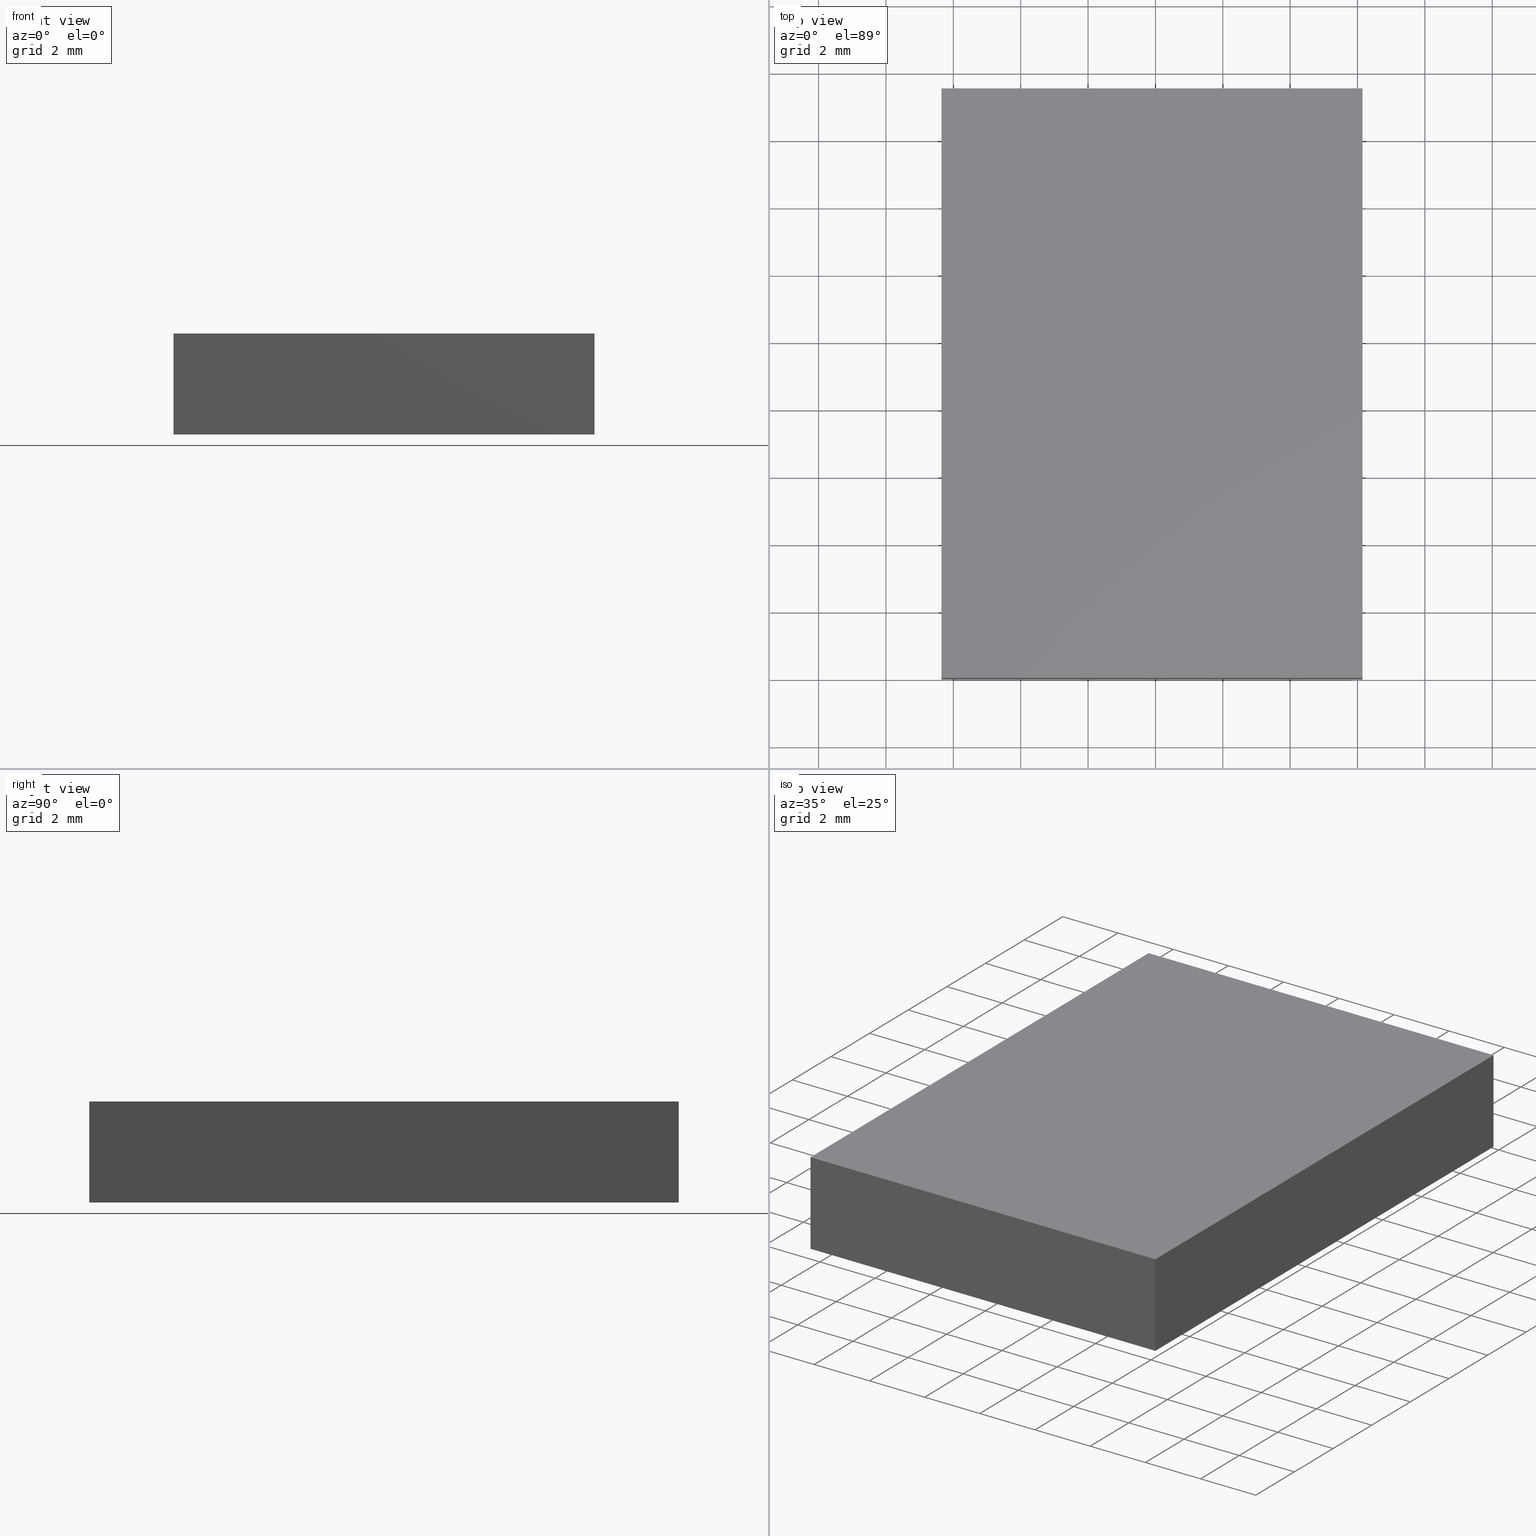
[diagram: canonical four-view strip — front | top / right | iso, engineering-drawing reading convention]
A machine part, canonical four-view strip (front | top / right | iso — engineering-drawing reading convention). The complete STEP part file that produces these views, byte-faithful:
ISO-10303-21;
HEADER;
FILE_DESCRIPTION (( 'STEP AP203' ),
    '1' );
FILE_NAME ('340507.STEP',
    '2019-07-30T06:59:13',
    ( '' ),
    ( '' ),
    'SwSTEP 2.0',
    'SolidWorks 2016',
    '' );
FILE_SCHEMA (( 'CONFIG_CONTROL_DESIGN' ));
ENDSEC;

DATA;
#1 = PLANE ( 'NONE',  #244 ) ;
#2 = PERSON_AND_ORGANIZATION ( #238, #294 ) ;
#3 = COORDINATED_UNIVERSAL_TIME_OFFSET ( 8, 0, .AHEAD. ) ;
#4 = ORIENTED_EDGE ( 'NONE', *, *, #304, .F. ) ;
#5 = PRODUCT_RELATED_PRODUCT_CATEGORY ( 'detail', '', ( #282 ) ) ;
#6 = DESIGN_CONTEXT ( 'detailed design', #262, 'design' ) ;
#7 = LINE ( 'NONE', #245, #56 ) ;
#8 = MECHANICAL_CONTEXT ( 'NONE', #112, 'mechanical' ) ;
#9 = CALENDAR_DATE ( 2019, 30, 7 ) ;
#10 = VERTEX_POINT ( 'NONE', #37 ) ;
#11 = CC_DESIGN_PERSON_AND_ORGANIZATION_ASSIGNMENT ( #84, #215, ( #282 ) ) ;
#12 = PRODUCT ( '340507', '340507', '', ( #8 ) ) ;
#13 = PERSON_AND_ORGANIZATION ( #238, #294 ) ;
#14 = APPLICATION_PROTOCOL_DEFINITION ( 'international standard', 'config_control_design', 1994, #298 ) ;
#15 = CARTESIAN_POINT ( 'NONE',  ( -6.351626016260162500, 7.520325203252024700, 3.000000000000000000 ) ) ;
#16 = DATE_TIME_ROLE ( 'creation_date' ) ;
#17 = MECHANICAL_CONTEXT ( 'NONE', #298, 'mechanical' ) ;
#18 = CARTESIAN_POINT ( 'NONE',  ( -6.351626016260160800, -9.979674796747977100, 3.000000000000000000 ) ) ;
#19 = VECTOR ( 'NONE', #50, 1000.000000000000000 ) ;
#20 = LINE ( 'NONE', #299, #270 ) ;
#21 = PERSON_AND_ORGANIZATION_ROLE ( 'design_owner' ) ;
#22 = CC_DESIGN_DATE_AND_TIME_ASSIGNMENT ( #242, #191, ( #117 ) ) ;
#23 = DATE_AND_TIME ( #159, #223 ) ;
#24 = ORIENTED_EDGE ( 'NONE', *, *, #214, .F. ) ;
#25 = CARTESIAN_POINT ( 'NONE',  ( 6.148373983739839200, 7.520325203252024700, 0.0000000000000000000 ) ) ;
#26 = LOCAL_TIME ( 14, 59, 13.00000000000000000, #163 ) ;
#27 = LOCAL_TIME ( 14, 59, 13.00000000000000000, #40 ) ;
#28 = PRODUCT_DEFINITION ( 'δ֪', '', #315, #6 ) ;
#29 = ORIENTED_EDGE ( 'NONE', *, *, #44, .F. ) ;
#30 = PLANE ( 'NONE',  #59 ) ;
#31 = DATE_AND_TIME ( #272, #283 ) ;
#32 = LINE ( 'NONE', #266, #207 ) ;
#33 = CARTESIAN_POINT ( 'NONE',  ( 0.0000000000000000000, 0.0000000000000000000, 0.0000000000000000000 ) ) ;
#34 = DIRECTION ( 'NONE',  ( 0.0000000000000000000, 0.0000000000000000000, 1.000000000000000000 ) ) ;
#35 = APPROVAL_DATE_TIME ( #80, #271 ) ;
#36 = CC_DESIGN_APPROVAL ( #82, ( #77 ) ) ;
#37 = CARTESIAN_POINT ( 'NONE',  ( -6.351626016260160800, -9.979674796747977100, 0.0000000000000000000 ) ) ;
#38 = PERSON_AND_ORGANIZATION_ROLE ( 'design_supplier' ) ;
#39 = DATE_TIME_ROLE ( 'creation_date' ) ;
#40 = COORDINATED_UNIVERSAL_TIME_OFFSET ( 8, 0, .AHEAD. ) ;
#41 = LOCAL_TIME ( 14, 59, 13.00000000000000000, #235 ) ;
#42 = APPROVAL_PERSON_ORGANIZATION ( #109, #133, #90 ) ;
#43 = PERSON_AND_ORGANIZATION_ROLE ( 'creator' ) ;
#44 = EDGE_CURVE ( 'NONE', #196, #201, #20, .T. ) ;
#45 = SECURITY_CLASSIFICATION_LEVEL ( 'unclassified' ) ;
#46 = CC_DESIGN_PERSON_AND_ORGANIZATION_ASSIGNMENT ( #263, #305, ( #28 ) ) ;
#47 = DIRECTION ( 'NONE',  ( 9.912705577010325500E-017, -1.000000000000000000, 0.0000000000000000000 ) ) ;
#48 = LINE ( 'NONE', #15, #293 ) ;
#49 = CARTESIAN_POINT ( 'NONE',  ( -6.351626016260162500, 7.520325203252024700, 0.0000000000000000000 ) ) ;
#50 = DIRECTION ( 'NONE',  ( 1.000000000000000000, 0.0000000000000000000, 0.0000000000000000000 ) ) ;
#51 = APPROVAL_PERSON_ORGANIZATION ( #83, #307, #260 ) ;
#52 = ORIENTED_EDGE ( 'NONE', *, *, #121, .T. ) ;
#53 = DIRECTION ( 'NONE',  ( -1.000000000000000000, -0.0000000000000000000, -0.0000000000000000000 ) ) ;
#54 = CC_DESIGN_PERSON_AND_ORGANIZATION_ASSIGNMENT ( #13, #38, ( #315 ) ) ;
#55 = CARTESIAN_POINT ( 'NONE',  ( -6.351626016260162500, 7.520325203252024700, 0.0000000000000000000 ) ) ;
#56 = VECTOR ( 'NONE', #202, 1000.000000000000000 ) ;
#57 = ORIENTED_EDGE ( 'NONE', *, *, #257, .F. ) ;
#58 = CC_DESIGN_SECURITY_CLASSIFICATION ( #117, ( #315 ) ) ;
#59 = AXIS2_PLACEMENT_3D ( 'NONE', #107, #228, #249 ) ;
#60 = APPROVAL ( #193, 'δָ��' ) ;
#61 = ORIENTED_EDGE ( 'NONE', *, *, #214, .T. ) ;
#62 = EDGE_CURVE ( 'NONE', #68, #164, #48, .T. ) ;
#63 = APPROVAL_DATE_TIME ( #211, #66 ) ;
#64 = COORDINATED_UNIVERSAL_TIME_OFFSET ( 8, 0, .AHEAD. ) ;
#65 = CARTESIAN_POINT ( 'NONE',  ( -6.351626016260162500, 7.520325203252024700, 3.000000000000000000 ) ) ;
#66 = APPROVAL ( #217, 'δָ��' ) ;
#67 = APPROVAL_STATUS ( 'not_yet_approved' ) ;
#68 = VERTEX_POINT ( 'NONE', #65 ) ;
#69 = DIRECTION ( 'NONE',  ( -4.956352788505162800E-017, 1.000000000000000000, -0.0000000000000000000 ) ) ;
#70 = EDGE_CURVE ( 'NONE', #264, #68, #138, .T. ) ;
#71 = PRODUCT_DEFINITION_SHAPE ( 'NONE', 'NONE',  #77 ) ;
#72 = APPROVAL_STATUS ( 'not_yet_approved' ) ;
#73 = DIRECTION ( 'NONE',  ( 1.000000000000000000, 9.912705577010325500E-017, -0.0000000000000000000 ) ) ;
#74 = CARTESIAN_POINT ( 'NONE',  ( -6.351626016260162500, 7.520325203252024700, 3.000000000000000000 ) ) ;
#75 = APPROVAL_PERSON_ORGANIZATION ( #302, #60, #303 ) ;
#76 = VECTOR ( 'NONE', #247, 1000.000000000000000 ) ;
#77 = PRODUCT_DEFINITION ( 'δ֪', '', #189, #129 ) ;
#78 = PERSON_AND_ORGANIZATION ( #238, #294 ) ;
#79 = APPROVAL_DATE_TIME ( #141, #133 ) ;
#80 = DATE_AND_TIME ( #178, #27 ) ;
#81 =( NAMED_UNIT ( * ) SI_UNIT ( $, .STERADIAN. ) SOLID_ANGLE_UNIT ( ) );
#82 = APPROVAL ( #279, 'δָ��' ) ;
#83 = PERSON_AND_ORGANIZATION ( #238, #294 ) ;
#84 = PERSON_AND_ORGANIZATION ( #238, #294 ) ;
#85 = ORIENTED_EDGE ( 'NONE', *, *, #140, .T. ) ;
#86 = EDGE_CURVE ( 'NONE', #160, #10, #281, .T. ) ;
#87 = CC_DESIGN_APPROVAL ( #66, ( #189 ) ) ;
#88 = ORIENTED_EDGE ( 'NONE', *, *, #304, .T. ) ;
#89 = APPLICATION_PROTOCOL_DEFINITION ( 'international standard', 'config_control_design', 1994, #259 ) ;
#90 = APPROVAL_ROLE ( '' ) ;
#91 = ORIENTED_EDGE ( 'NONE', *, *, #232, .F. ) ;
#92 = CARTESIAN_POINT ( 'NONE',  ( -6.351626016260160800, -9.979674796747977100, 3.000000000000000000 ) ) ;
#93 = APPROVAL_ROLE ( '' ) ;
#94 = PLANE ( 'NONE',  #152 ) ;
#95 = DATE_AND_TIME ( #288, #41 ) ;
#96 = EDGE_LOOP ( 'NONE', ( #290, #91, #229, #57 ) ) ;
#97 = CARTESIAN_POINT ( 'NONE',  ( -6.351626016260162500, 7.520325203252024700, 3.000000000000000000 ) ) ;
#98 = PERSON_AND_ORGANIZATION ( #238, #294 ) ;
#99 = SHAPE_DEFINITION_REPRESENTATION ( #71, #205 ) ;
#100 = ORIENTED_EDGE ( 'NONE', *, *, #161, .F. ) ;
#101 = CARTESIAN_POINT ( 'NONE',  ( -6.351626016260160800, -9.979674796747977100, 0.0000000000000000000 ) ) ;
#102 = CC_DESIGN_DATE_AND_TIME_ASSIGNMENT ( #23, #39, ( #77 ) ) ;
#103 = AXIS2_PLACEMENT_3D ( 'NONE', #314, #151, #291 ) ;
#104 = CARTESIAN_POINT ( 'NONE',  ( 0.0000000000000000000, 0.0000000000000000000, 0.0000000000000000000 ) ) ;
#105 = CALENDAR_DATE ( 2019, 30, 7 ) ;
#106 = COORDINATED_UNIVERSAL_TIME_OFFSET ( 8, 0, .AHEAD. ) ;
#107 = CARTESIAN_POINT ( 'NONE',  ( -6.351626016260162500, 7.520325203252024700, 3.000000000000000000 ) ) ;
#108 = CC_DESIGN_PERSON_AND_ORGANIZATION_ASSIGNMENT ( #78, #43, ( #77 ) ) ;
#109 = PERSON_AND_ORGANIZATION ( #238, #294 ) ;
#110 = CC_DESIGN_APPROVAL ( #60, ( #315 ) ) ;
#111 = CALENDAR_DATE ( 2019, 30, 7 ) ;
#112 = APPLICATION_CONTEXT ( 'configuration controlled 3d designs of mechanical parts and assemblies' ) ;
#113 = ORIENTED_EDGE ( 'NONE', *, *, #62, .T. ) ;
#114 = AXIS2_PLACEMENT_3D ( 'NONE', #118, #198, #286 ) ;
#115 = APPROVAL_ROLE ( '' ) ;
#116 = EDGE_LOOP ( 'NONE', ( #136, #100, #172, #88 ) ) ;
#117 = SECURITY_CLASSIFICATION ( '', '', #45 ) ;
#118 = CARTESIAN_POINT ( 'NONE',  ( 6.148373983739839200, 7.520325203252024700, 3.000000000000000000 ) ) ;
#119 = PERSON_AND_ORGANIZATION_ROLE ( 'classification_officer' ) ;
#120 = LOCAL_TIME ( 14, 59, 13.00000000000000000, #203 ) ;
#121 = EDGE_CURVE ( 'NONE', #201, #285, #183, .T. ) ;
#122 = VECTOR ( 'NONE', #180, 1000.000000000000000 ) ;
#123 = EDGE_LOOP ( 'NONE', ( #131, #4, #142, #310 ) ) ;
#124 = PERSON_AND_ORGANIZATION_ROLE ( 'creator' ) ;
#125 = ADVANCED_FACE ( 'NONE', ( #175 ), #94, .F. ) ;
#126 = DIRECTION ( 'NONE',  ( -4.956352788505162800E-017, 1.000000000000000000, -0.0000000000000000000 ) ) ;
#127 = CARTESIAN_POINT ( 'NONE',  ( 0.0000000000000000000, 0.0000000000000000000, 0.0000000000000000000 ) ) ;
#128 = PLANE ( 'NONE',  #103 ) ;
#129 = DESIGN_CONTEXT ( 'detailed design', #259, 'design' ) ;
#130 = DATE_AND_TIME ( #195, #254 ) ;
#131 = ORIENTED_EDGE ( 'NONE', *, *, #232, .T. ) ;
#132 =( NAMED_UNIT ( * ) PLANE_ANGLE_UNIT ( ) SI_UNIT ( $, .RADIAN. ) );
#133 = APPROVAL ( #162, 'δָ��' ) ;
#134 = COORDINATED_UNIVERSAL_TIME_OFFSET ( 8, 0, .AHEAD. ) ;
#135 = SECURITY_CLASSIFICATION ( '', '', #309 ) ;
#136 = ORIENTED_EDGE ( 'NONE', *, *, #86, .T. ) ;
#137 = DIRECTION ( 'NONE',  ( -0.0000000000000000000, -0.0000000000000000000, -1.000000000000000000 ) ) ;
#138 = LINE ( 'NONE', #234, #186 ) ;
#139 = CC_DESIGN_DATE_AND_TIME_ASSIGNMENT ( #130, #16, ( #28 ) ) ;
#140 = EDGE_CURVE ( 'NONE', #196, #264, #32, .T. ) ;
#141 = DATE_AND_TIME ( #9, #26 ) ;
#142 = ORIENTED_EDGE ( 'NONE', *, *, #70, .F. ) ;
#143 = PERSON_AND_ORGANIZATION_ROLE ( 'design_supplier' ) ;
#144 = CC_DESIGN_APPROVAL ( #307, ( #117 ) ) ;
#145 = CARTESIAN_POINT ( 'NONE',  ( 6.148373983739839200, 7.520325203252024700, 0.0000000000000000000 ) ) ;
#146 = APPROVAL_PERSON_ORGANIZATION ( #182, #66, #115 ) ;
#147 = CARTESIAN_POINT ( 'NONE',  ( -6.351626016260162500, 7.520325203252024700, 0.0000000000000000000 ) ) ;
#148 = ADVANCED_FACE ( 'NONE', ( #155 ), #306, .F. ) ;
#149 = LOCAL_TIME ( 14, 59, 13.00000000000000000, #154 ) ;
#150 = VECTOR ( 'NONE', #311, 1000.000000000000000 ) ;
#151 = DIRECTION ( 'NONE',  ( 0.0000000000000000000, 1.000000000000000000, 0.0000000000000000000 ) ) ;
#152 = AXIS2_PLACEMENT_3D ( 'NONE', #74, #73, #240 ) ;
#153 = PERSON_AND_ORGANIZATION ( #238, #294 ) ;
#154 = COORDINATED_UNIVERSAL_TIME_OFFSET ( 8, 0, .AHEAD. ) ;
#155 = FACE_OUTER_BOUND ( 'NONE', #275, .T. ) ;
#156 = ORIENTED_EDGE ( 'NONE', *, *, #257, .T. ) ;
#157 = CC_DESIGN_PERSON_AND_ORGANIZATION_ASSIGNMENT ( #153, #185, ( #315 ) ) ;
#158 = LOCAL_TIME ( 14, 59, 13.00000000000000000, #251 ) ;
#159 = CALENDAR_DATE ( 2019, 30, 7 ) ;
#160 = VERTEX_POINT ( 'NONE', #147 ) ;
#161 = EDGE_CURVE ( 'NONE', #164, #10, #216, .T. ) ;
#162 = APPROVAL_STATUS ( 'not_yet_approved' ) ;
#163 = COORDINATED_UNIVERSAL_TIME_OFFSET ( 8, 0, .AHEAD. ) ;
#164 = VERTEX_POINT ( 'NONE', #18 ) ;
#165 = PERSON_AND_ORGANIZATION_ROLE ( 'classification_officer' ) ;
#166 =( GEOMETRIC_REPRESENTATION_CONTEXT ( 3 ) GLOBAL_UNCERTAINTY_ASSIGNED_CONTEXT ( ( #209 ) ) GLOBAL_UNIT_ASSIGNED_CONTEXT ( ( #176, #132, #81 ) ) REPRESENTATION_CONTEXT ( 'NONE', 'WORKASPACE' ) );
#167 = APPROVAL_PERSON_ORGANIZATION ( #231, #271, #93 ) ;
#168 = DIRECTION ( 'NONE',  ( -0.0000000000000000000, 0.0000000000000000000, 1.000000000000000000 ) ) ;
#169 = CARTESIAN_POINT ( 'NONE',  ( 6.148373983739840100, -9.979674796747977100, 0.0000000000000000000 ) ) ;
#170 = CC_DESIGN_APPROVAL ( #133, ( #28 ) ) ;
#171 = PERSON_AND_ORGANIZATION ( #238, #294 ) ;
#172 = ORIENTED_EDGE ( 'NONE', *, *, #62, .F. ) ;
#173 = DIRECTION ( 'NONE',  ( -0.0000000000000000000, 0.0000000000000000000, 1.000000000000000000 ) ) ;
#174 = PERSON_AND_ORGANIZATION ( #238, #294 ) ;
#175 = FACE_OUTER_BOUND ( 'NONE', #116, .T. ) ;
#176 =( LENGTH_UNIT ( ) NAMED_UNIT ( * ) SI_UNIT ( .MILLI., .METRE. ) );
#177 = PRODUCT_RELATED_PRODUCT_CATEGORY ( 'detail', '', ( #12 ) ) ;
#178 = CALENDAR_DATE ( 2019, 30, 7 ) ;
#179 = FACE_OUTER_BOUND ( 'NONE', #297, .T. ) ;
#180 = DIRECTION ( 'NONE',  ( -0.0000000000000000000, -0.0000000000000000000, -1.000000000000000000 ) ) ;
#181 = DIRECTION ( 'NONE',  ( 1.000000000000000000, 0.0000000000000000000, 0.0000000000000000000 ) ) ;
#182 = PERSON_AND_ORGANIZATION ( #238, #294 ) ;
#183 = LINE ( 'NONE', #145, #236 ) ;
#184 = ORIENTED_EDGE ( 'NONE', *, *, #199, .F. ) ;
#185 = PERSON_AND_ORGANIZATION_ROLE ( 'creator' ) ;
#186 = VECTOR ( 'NONE', #219, 1000.000000000000000 ) ;
#187 = APPROVAL_ROLE ( '' ) ;
#188 = DIRECTION ( 'NONE',  ( 9.912705577010325500E-017, -1.000000000000000000, 0.0000000000000000000 ) ) ;
#189 = PRODUCT_DEFINITION_FORMATION_WITH_SPECIFIED_SOURCE ( '�κ�', '', #282, .NOT_KNOWN. ) ;
#190 = APPLICATION_PROTOCOL_DEFINITION ( 'international standard', 'config_control_design', 1994, #262 ) ;
#191 = DATE_TIME_ROLE ( 'classification_date' ) ;
#192 = CARTESIAN_POINT ( 'NONE',  ( -6.351626016260160800, -9.979674796747977100, 3.000000000000000000 ) ) ;
#193 = APPROVAL_STATUS ( 'not_yet_approved' ) ;
#194 = CARTESIAN_POINT ( 'NONE',  ( 6.148373983739840100, -9.979674796747977100, 3.000000000000000000 ) ) ;
#195 = CALENDAR_DATE ( 2019, 30, 7 ) ;
#196 = VERTEX_POINT ( 'NONE', #194 ) ;
#197 = CC_DESIGN_PERSON_AND_ORGANIZATION_ASSIGNMENT ( #2, #119, ( #135 ) ) ;
#198 = DIRECTION ( 'NONE',  ( -1.000000000000000000, -4.956352788505162800E-017, 0.0000000000000000000 ) ) ;
#199 = EDGE_CURVE ( 'NONE', #264, #285, #7, .T. ) ;
#200 = LINE ( 'NONE', #101, #19 ) ;
#201 = VERTEX_POINT ( 'NONE', #169 ) ;
#202 = DIRECTION ( 'NONE',  ( -0.0000000000000000000, -0.0000000000000000000, -1.000000000000000000 ) ) ;
#203 = COORDINATED_UNIVERSAL_TIME_OFFSET ( 8, 0, .AHEAD. ) ;
#204 = VECTOR ( 'NONE', #47, 1000.000000000000000 ) ;
#205 = ADVANCED_BREP_SHAPE_REPRESENTATION ( '340507', ( #301, #261 ), #166 ) ;
#206 = APPROVAL_DATE_TIME ( #269, #82 ) ;
#207 = VECTOR ( 'NONE', #126, 1000.000000000000000 ) ;
#208 = DIRECTION ( 'NONE',  ( 1.000000000000000000, 0.0000000000000000000, 0.0000000000000000000 ) ) ;
#209 = UNCERTAINTY_MEASURE_WITH_UNIT (LENGTH_MEASURE( 1.000000000000000100E-005 ), #176, 'distance_accuracy_value', 'NONE');
#210 = CC_DESIGN_SECURITY_CLASSIFICATION ( #135, ( #189 ) ) ;
#211 = DATE_AND_TIME ( #105, #120 ) ;
#212 = APPROVAL_DATE_TIME ( #31, #60 ) ;
#213 = ORIENTED_EDGE ( 'NONE', *, *, #140, .F. ) ;
#214 = EDGE_CURVE ( 'NONE', #164, #196, #308, .T. ) ;
#215 = PERSON_AND_ORGANIZATION_ROLE ( 'design_owner' ) ;
#216 = LINE ( 'NONE', #192, #150 ) ;
#217 = APPROVAL_STATUS ( 'not_yet_approved' ) ;
#218 = EDGE_LOOP ( 'NONE', ( #113, #61, #85, #250 ) ) ;
#219 = DIRECTION ( 'NONE',  ( -1.000000000000000000, -0.0000000000000000000, -0.0000000000000000000 ) ) ;
#220 = ADVANCED_FACE ( 'NONE', ( #179 ), #128, .F. ) ;
#221 = FACE_OUTER_BOUND ( 'NONE', #218, .T. ) ;
#222 = CLOSED_SHELL ( 'NONE', ( #125, #220, #148, #312, #237, #265 ) ) ;
#223 = LOCAL_TIME ( 14, 59, 13.00000000000000000, #106 ) ;
#224 = ORIENTED_EDGE ( 'NONE', *, *, #44, .T. ) ;
#225 = AXIS2_PLACEMENT_3D ( 'NONE', #246, #168, #313 ) ;
#226 = PRODUCT_DEFINITION_SHAPE ( 'NONE', 'NONE',  #28 ) ;
#227 = APPROVAL_DATE_TIME ( #95, #307 ) ;
#228 = DIRECTION ( 'NONE',  ( 0.0000000000000000000, -1.000000000000000000, 0.0000000000000000000 ) ) ;
#229 = ORIENTED_EDGE ( 'NONE', *, *, #121, .F. ) ;
#230 = CC_DESIGN_PERSON_AND_ORGANIZATION_ASSIGNMENT ( #241, #143, ( #189 ) ) ;
#231 = PERSON_AND_ORGANIZATION ( #238, #294 ) ;
#232 = EDGE_CURVE ( 'NONE', #285, #160, #258, .T. ) ;
#233 = APPROVAL_PERSON_ORGANIZATION ( #98, #82, #187 ) ;
#234 = CARTESIAN_POINT ( 'NONE',  ( -6.351626016260162500, 7.520325203252024700, 3.000000000000000000 ) ) ;
#235 = COORDINATED_UNIVERSAL_TIME_OFFSET ( 8, 0, .AHEAD. ) ;
#236 = VECTOR ( 'NONE', #69, 1000.000000000000000 ) ;
#237 = ADVANCED_FACE ( 'NONE', ( #221 ), #267, .T. ) ;
#238 = PERSON ( 'δָ��', 'δָ��', 'δָ��', ('δָ��'), ('δָ��'), ('δָ��') ) ;
#239 = DATE_TIME_ROLE ( 'classification_date' ) ;
#240 = DIRECTION ( 'NONE',  ( -9.912705577010325500E-017, 1.000000000000000000, 0.0000000000000000000 ) ) ;
#241 = PERSON_AND_ORGANIZATION ( #238, #294 ) ;
#242 = DATE_AND_TIME ( #252, #280 ) ;
#243 = FACE_OUTER_BOUND ( 'NONE', #123, .T. ) ;
#244 = AXIS2_PLACEMENT_3D ( 'NONE', #127, #173, #287 ) ;
#245 = CARTESIAN_POINT ( 'NONE',  ( 6.148373983739839200, 7.520325203252024700, 3.000000000000000000 ) ) ;
#246 = CARTESIAN_POINT ( 'NONE',  ( 0.0000000000000000000, 0.0000000000000000000, 3.000000000000000000 ) ) ;
#247 = DIRECTION ( 'NONE',  ( 1.000000000000000000, 0.0000000000000000000, 0.0000000000000000000 ) ) ;
#248 = LINE ( 'NONE', #97, #122 ) ;
#249 = DIRECTION ( 'NONE',  ( 0.0000000000000000000, -0.0000000000000000000, -1.000000000000000000 ) ) ;
#250 = ORIENTED_EDGE ( 'NONE', *, *, #70, .T. ) ;
#251 = COORDINATED_UNIVERSAL_TIME_OFFSET ( 8, 0, .AHEAD. ) ;
#252 = CALENDAR_DATE ( 2019, 30, 7 ) ;
#253 = DIRECTION ( 'NONE',  ( 0.0000000000000000000, 0.0000000000000000000, 1.000000000000000000 ) ) ;
#254 = LOCAL_TIME ( 14, 59, 13.00000000000000000, #3 ) ;
#255 = CC_DESIGN_DATE_AND_TIME_ASSIGNMENT ( #292, #239, ( #135 ) ) ;
#256 = APPLICATION_PROTOCOL_DEFINITION ( 'international standard', 'config_control_design', 1994, #112 ) ;
#257 = EDGE_CURVE ( 'NONE', #10, #201, #200, .T. ) ;
#258 = LINE ( 'NONE', #55, #274 ) ;
#259 = APPLICATION_CONTEXT ( 'configuration controlled 3d designs of mechanical parts and assemblies' ) ;
#260 = APPROVAL_ROLE ( '' ) ;
#261 = AXIS2_PLACEMENT_3D ( 'NONE', #33, #253, #181 ) ;
#262 = APPLICATION_CONTEXT ( 'configuration controlled 3d designs of mechanical parts and assemblies' ) ;
#263 = PERSON_AND_ORGANIZATION ( #238, #294 ) ;
#264 = VERTEX_POINT ( 'NONE', #268 ) ;
#265 = ADVANCED_FACE ( 'NONE', ( #296 ), #1, .F. ) ;
#266 = CARTESIAN_POINT ( 'NONE',  ( 6.148373983739839200, 7.520325203252024700, 3.000000000000000000 ) ) ;
#267 = PLANE ( 'NONE',  #225 ) ;
#268 = CARTESIAN_POINT ( 'NONE',  ( 6.148373983739839200, 7.520325203252024700, 3.000000000000000000 ) ) ;
#269 = DATE_AND_TIME ( #277, #149 ) ;
#270 = VECTOR ( 'NONE', #137, 1000.000000000000000 ) ;
#271 = APPROVAL ( #72, 'δָ��' ) ;
#272 = CALENDAR_DATE ( 2019, 30, 7 ) ;
#273 = PERSON_AND_ORGANIZATION ( #238, #294 ) ;
#274 = VECTOR ( 'NONE', #53, 1000.000000000000000 ) ;
#275 = EDGE_LOOP ( 'NONE', ( #52, #184, #213, #224 ) ) ;
#276 = AXIS2_PLACEMENT_3D ( 'NONE', #104, #34, #208 ) ;
#277 = CALENDAR_DATE ( 2019, 30, 7 ) ;
#278 = ORIENTED_EDGE ( 'NONE', *, *, #161, .T. ) ;
#279 = APPROVAL_STATUS ( 'not_yet_approved' ) ;
#280 = LOCAL_TIME ( 14, 59, 13.00000000000000000, #64 ) ;
#281 = LINE ( 'NONE', #49, #204 ) ;
#282 = PRODUCT ( '340507', '340507', '', ( #17 ) ) ;
#283 = LOCAL_TIME ( 14, 59, 13.00000000000000000, #134 ) ;
#284 = CC_DESIGN_PERSON_AND_ORGANIZATION_ASSIGNMENT ( #174, #124, ( #189 ) ) ;
#285 = VERTEX_POINT ( 'NONE', #25 ) ;
#286 = DIRECTION ( 'NONE',  ( 4.956352788505162800E-017, -1.000000000000000000, 0.0000000000000000000 ) ) ;
#287 = DIRECTION ( 'NONE',  ( 1.000000000000000000, 0.0000000000000000000, 0.0000000000000000000 ) ) ;
#288 = CALENDAR_DATE ( 2019, 30, 7 ) ;
#289 = CC_DESIGN_PERSON_AND_ORGANIZATION_ASSIGNMENT ( #171, #21, ( #12 ) ) ;
#290 = ORIENTED_EDGE ( 'NONE', *, *, #86, .F. ) ;
#291 = DIRECTION ( 'NONE',  ( 0.0000000000000000000, -0.0000000000000000000, 1.000000000000000000 ) ) ;
#292 = DATE_AND_TIME ( #111, #158 ) ;
#293 = VECTOR ( 'NONE', #188, 1000.000000000000000 ) ;
#294 = ORGANIZATION ( 'δָ��', 'δָ��', '' ) ;
#295 = CC_DESIGN_PERSON_AND_ORGANIZATION_ASSIGNMENT ( #273, #165, ( #117 ) ) ;
#296 = FACE_OUTER_BOUND ( 'NONE', #96, .T. ) ;
#297 = EDGE_LOOP ( 'NONE', ( #156, #29, #24, #278 ) ) ;
#298 = APPLICATION_CONTEXT ( 'configuration controlled 3d designs of mechanical parts and assemblies' ) ;
#299 = CARTESIAN_POINT ( 'NONE',  ( 6.148373983739840100, -9.979674796747977100, 3.000000000000000000 ) ) ;
#300 = CC_DESIGN_APPROVAL ( #271, ( #135 ) ) ;
#301 = MANIFOLD_SOLID_BREP ( '͹̨-����1', #222 ) ;
#302 = PERSON_AND_ORGANIZATION ( #238, #294 ) ;
#303 = APPROVAL_ROLE ( '' ) ;
#304 = EDGE_CURVE ( 'NONE', #68, #160, #248, .T. ) ;
#305 = PERSON_AND_ORGANIZATION_ROLE ( 'creator' ) ;
#306 = PLANE ( 'NONE',  #114 ) ;
#307 = APPROVAL ( #67, 'δָ��' ) ;
#308 = LINE ( 'NONE', #92, #76 ) ;
#309 = SECURITY_CLASSIFICATION_LEVEL ( 'unclassified' ) ;
#310 = ORIENTED_EDGE ( 'NONE', *, *, #199, .T. ) ;
#311 = DIRECTION ( 'NONE',  ( -0.0000000000000000000, -0.0000000000000000000, -1.000000000000000000 ) ) ;
#312 = ADVANCED_FACE ( 'NONE', ( #243 ), #30, .F. ) ;
#313 = DIRECTION ( 'NONE',  ( 1.000000000000000000, 0.0000000000000000000, 0.0000000000000000000 ) ) ;
#314 = CARTESIAN_POINT ( 'NONE',  ( -6.351626016260160800, -9.979674796747977100, 3.000000000000000000 ) ) ;
#315 = PRODUCT_DEFINITION_FORMATION_WITH_SPECIFIED_SOURCE ( '�κ�', '', #12, .NOT_KNOWN. ) ;
ENDSEC;
END-ISO-10303-21;
